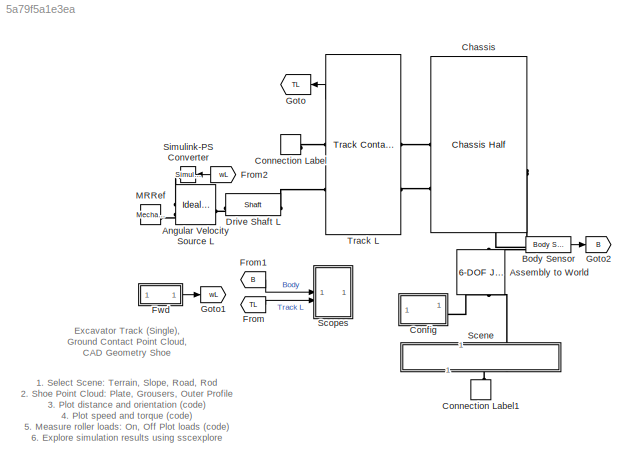
MODEL slx_5a79f5a1e3ea
KIND model
CONFIG AbsTol = 1e-3
CONFIG FixedStep = 2e-4
CONFIG SolverName = ode23t
CONFIG StartFcn = tic
CONFIG StopFcn = Elapsed_Sim_Time = toc;\ndisp(['Elapsed Sim Time = ' num2str(Elapsed_Sim_Time)]);\n
CONFIG StopTime = 14
BLOCK [Reference] Angular Velocity Source L  REF=fl_lib/Mechanical/Mechanical Sources/Ideal Angular
Velocity Source
  SourceBlock = fl_lib/Mechanical/Mechanical Sources/Ideal Angular\nVelocity Source
  SourceType = Ideal Angular\nVelocity Source
BLOCK [Reference] Assembly to World  REF=sm_lib/Joints/6-DOF Joint
  NameLocation = left
  SourceBlock = sm_lib/Joints/6-DOF Joint
  SourceType = 6-DOF Joint
BLOCK [Reference] Body Sensor  REF=sm_excv_chassis_lib/Body Sensor  (lib defined in slx_b1ec5a7399d3)
  SourceBlock = sm_excv_chassis_lib/Body Sensor
  SourceType = Measurements in Body Frame
BLOCK [Reference] Chassis  REF=sm_excv_chassis_lib/Chassis Half  (lib defined in slx_b1ec5a7399d3)
  NameLocation = top
  SourceBlock = sm_excv_chassis_lib/Chassis Half
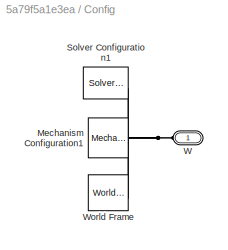
BLOCK [SubSystem] Config
BLOCK [Reference] Config/Mechanism Configuration1  REF=sm_lib/Utilities/Mechanism
Configuration
  SourceBlock = sm_lib/Utilities/Mechanism\nConfiguration
  SourceType = Mechanism\nConfiguration
BLOCK [Reference] Config/Solver Configuration1  REF=nesl_utility/Solver
Configuration
  SourceBlock = nesl_utility/Solver\nConfiguration
  SourceType = Solver\nConfiguration
BLOCK [PMIOPort] Config/W
  Side = Left
BLOCK [Reference] Config/World Frame  REF=sm_lib/Frames and
Transforms/World Frame
  SourceBlock = sm_lib/Frames and\nTransforms/World Frame
  SourceType = World Frame
BLOCK [ConnectionLabel] Connection Label
  Label = GL
  NameLocation = top
BLOCK [ConnectionLabel] Connection Label1
  Label = GL
  NameLocation = left
BLOCK [Reference] Drive Shaft L  REF=sm_trackV_lib_chain_underc_elem/Shaft
  SourceBlock = sm_trackV_lib_chain_underc_elem/Shaft
  SourceType = Driveshaft
BLOCK [From] From
  GotoTag = TL
BLOCK [From] From1
  GotoTag = B
BLOCK [From] From2
  GotoTag = wL
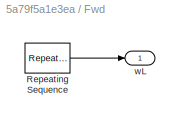
BLOCK [SubSystem] Fwd
  VariantControl = Fwd
BLOCK [Reference] Fwd/Repeating Sequence  REF=simulink/Sources/Repeating
Sequence
  SourceBlock = simulink/Sources/Repeating\nSequence
  SourceType = Repeating table
BLOCK [Outport] Fwd/wL
BLOCK [Goto] Goto
  GotoTag = TL
BLOCK [Goto] Goto1
  GotoTag = wL
BLOCK [Goto] Goto2
  GotoTag = B
BLOCK [Reference] MRRef  REF=fl_lib/Mechanical/Rotational Elements/Mechanical
Rotational Reference
  SourceBlock = fl_lib/Mechanical/Rotational Elements/Mechanical\nRotational Reference
  SourceType = Mechanical\nRotational Reference
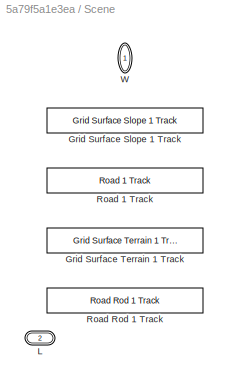
BLOCK [SubSystem] Scene
  AttributesFormatString = %<LabelModeActiveChoice>
  LabelModeActiveChoice = Terrain
  NameLocation = right
  Variant = on
  VariantControlMode = label
BLOCK [Reference] Scene/Grid Surface Slope 1 Track  REF=sm_trackV_lib_terrain_contact_s46/Grid Surface
Slope 1 Track
  NameLocation = right
  SourceBlock = sm_trackV_lib_terrain_contact_s46/Grid Surface\nSlope 1 Track
BLOCK [Reference] Scene/Grid Surface Terrain 1 Track  REF=sm_trackV_lib_terrain_contact_s46/Grid Surface
Terrain 1 Track
  NameLocation = right
  SourceBlock = sm_trackV_lib_terrain_contact_s46/Grid Surface\nTerrain 1 Track
  SourceType = SubSystem
BLOCK [PMIOPort] Scene/L
  Port = 2
  Side = Left
BLOCK [Reference] Scene/Road 1 Track  REF=sm_trackV_lib_terrain_contact_s46/Road
1 Track
  NameLocation = right
  SourceBlock = sm_trackV_lib_terrain_contact_s46/Road\n1 Track
  SourceType = SubSystem
BLOCK [Reference] Scene/Road Rod 1 Track  REF=sm_trackV_lib_terrain_contact_s46/Road Rod
1 Track
  NameLocation = right
  SourceBlock = sm_trackV_lib_terrain_contact_s46/Road Rod\n1 Track
  SourceType = SubSystem
BLOCK [PMIOPort] Scene/W
  NameLocation = left
  Side = Right
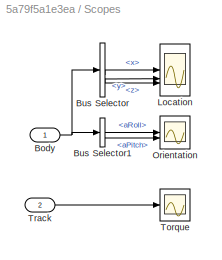
BLOCK [SubSystem] Scopes
BLOCK [Inport] Scopes/Body
BLOCK [BusSelector] Scopes/Bus Selector
  OutputSignals = x,y,z
BLOCK [BusSelector] Scopes/Bus Selector1
  OutputSignals = aRoll,aPitch
BLOCK [Scope] Scopes/Location
  ActiveDisplayYMaximum = 13.72233
  ActiveDisplayYMinimum = -2.438
  DataLoggingVariableName = ScopeData1
  Floating = off
  GraphicalSettings = {"GraphicalSettings":{"LegacySettings":true,"Style":{"Style":{"AxesColor":"[0 0 0]","ChannelNames":[""],"ColorOrder":"[1 1 0.0666666666666667;0.0745098039215686 0.623529411764706 1;1 0.411764705882353 0.16078431372549;0.392156862745098 0.831372549019608 0.0745098039215686;0.717647058823529 0.274509803921569 1;0.0588235294117647 1 1;1 0.0745098039215686 0.650980392156863]","CurrentConfiguration":"e...<+349ch>
  MultipleDisplayCache = [{"MaxYLimMag":13.72233,"MaxYLimReal":13.72233,"MinYLimMag":0,"MinYLimReal":-2.438,"PlotAsMagnitudePhase":false,"ShowGrid":true,"ShowLegend":false,"Title":"%<SignalLabel>","YLabel":""}]
  NumInputPorts = 3
  WasSavedAsWebScope = on
  WindowPosition = [946 567 560 420]
BLOCK [Scope] Scopes/Orientation
  ActiveDisplayYMaximum = 0.36121
  ActiveDisplayYMinimum = -0.40552
  DataLoggingVariableName = ScopeData2
  Floating = off
  GraphicalSettings = {"GraphicalSettings":{"LegacySettings":true,"Style":{"Style":{"AxesColor":"[0 0 0]","ChannelNames":[""],"ColorOrder":"[1 1 0.0666666666666667;0.0745098039215686 0.623529411764706 1;1 0.411764705882353 0.16078431372549;0.392156862745098 0.831372549019608 0.0745098039215686;0.717647058823529 0.274509803921569 1;0.0588235294117647 1 1;1 0.0745098039215686 0.650980392156863]","CurrentConfiguration":"e...<+346ch>
  MultipleDisplayCache = [{"MaxYLimMag":0.40552,"MaxYLimReal":0.36121,"MinYLimMag":0,"MinYLimReal":-0.40552,"PlotAsMagnitudePhase":false,"ShowGrid":true,"ShowLegend":true,"Title":"%<SignalLabel>","YLabel":""}]
  NumInputPorts = 2
  ShowLegend = on
  WasSavedAsWebScope = on
  WindowPosition = [1319 385 560 420]
BLOCK [Scope] Scopes/Torque
  Floating = off
  GraphicalSettings = {"GraphicalSettings":{"LegacySettings":true,"Style":{"Style":{"CurrentConfiguration":"extmgr.ConfigurationSet","MinimizeControls":"false","PlotType":"Auto","Version":"2023a"}}}}
  NumInputPorts = 1
  WasSavedAsWebScope = on
BLOCK [Inport] Scopes/Track
  Port = 2
BLOCK [Reference] Simulink-PS Converter  REF=nesl_utility/Simulink-PS
Converter
  NameLocation = top
  SourceBlock = nesl_utility/Simulink-PS\nConverter
  SourceType = Simulink-PS\nConverter
BLOCK [Reference] Track L  REF=sm_trackV_lib_chain_lower_frame_s46i1u2l7/Track Contact Point Cloud
CAD Shoe
  SourceBlock = sm_trackV_lib_chain_lower_frame_s46i1u2l7/Track Contact Point Cloud\nCAD Shoe
  SourceType = Lower Frame with Point Cloud Contact
ANNOTATION (root): 1. Select Scene: Terrain , Slope , Road , Rod 2. Shoe Point Cloud: Plate , Grousers , Outer Profile 3. Plot distance and orientation ( code ) 4. Plot speed and torque ( code ) 5. Measure roller loads: On , Off Plot loads ( code ) 6. Explore simulation results using sscexplore 7. Learn more about this example
ANNOTATION (root): Excavator Track (Single), Ground Contact Point Cloud, CAD Geometry Shoe
LINE Body Sensor:1 -> Goto2:1
LINE From1:1 -> Scopes:1
LINE From2:1 -> Simulink-PS Converter:1
LINE From:1 -> Scopes:2
LINE Fwd/Repeating Sequence:1 -> Fwd/wL:1
LINE Fwd:1 -> Goto1:1
NET Scopes/Body:1 -> Scopes/Bus Selector1:1, Scopes/Bus Selector:1
LINE Scopes/Bus Selector1:1 -> Scopes/Orientation:1
LINE Scopes/Bus Selector1:2 -> Scopes/Orientation:2
LINE Scopes/Bus Selector:1 -> Scopes/Location:1
LINE Scopes/Bus Selector:2 -> Scopes/Location:2
LINE Scopes/Bus Selector:3 -> Scopes/Location:3
LINE Scopes/Track:1 -> Scopes/Torque:1
LINE Track L:1 -> Goto:1
PLINE Angular Velocity Source L:LConn1 -- Drive Shaft L:LConn1
PLINE Angular Velocity Source L:RConn1 -- Simulink-PS Converter:RConn1
PLINE Angular Velocity Source L:RConn2 -- MRRef:LConn1
PNET net1: Assembly to World:LConn1 -- Config:LConn1 -- Scene:RConn1
PNET net2: Assembly to World:RConn1 -- Body Sensor:LConn1 -- Chassis:RConn1
PLINE Chassis:LConn1 -- Track L:LConn1
PLINE Chassis:LConn2 -- Track L:LConn2
PNET net3: Config/Mechanism Configuration1:RConn1 -- Config/Solver Configuration1:RConn1 -- Config/W:RConn1 -- Config/World Frame:RConn1
PLINE Connection Label1:LConn1 -- Scene:LConn1
PLINE Connection Label:LConn1 -- Track L:RConn1
PLINE Drive Shaft L:RConn1 -- Track L:RConn2
note: NET lines group one-source signal fan-out (src -> all destinations, sorted); 1:1 wires keep LINE; PNET lines group multi-terminal physical nets as a canonical sorted terminal list (undirected conserving connections); 2-terminal nets keep the pairwise PLINE form
